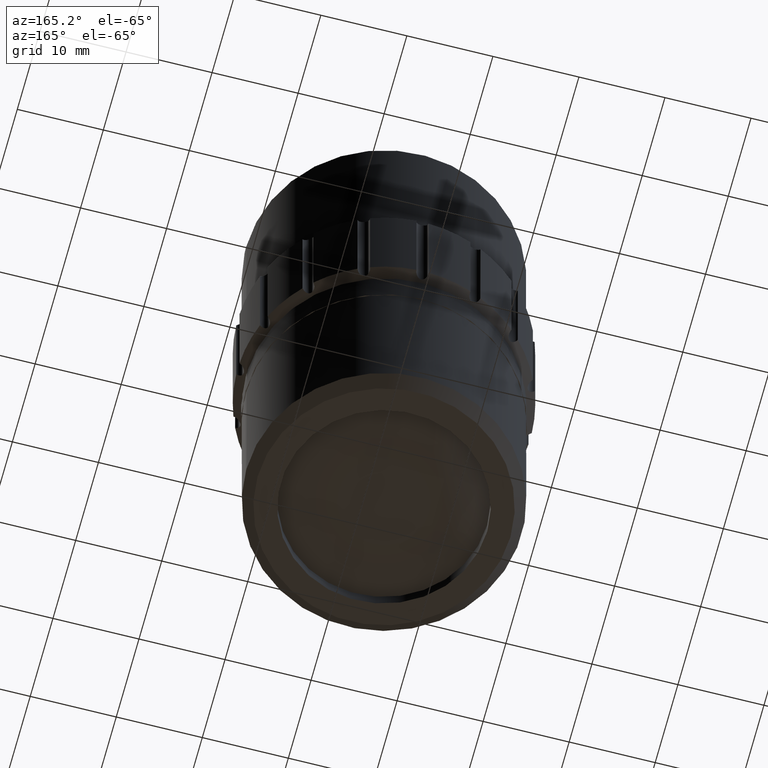
[diagram: clean part render]
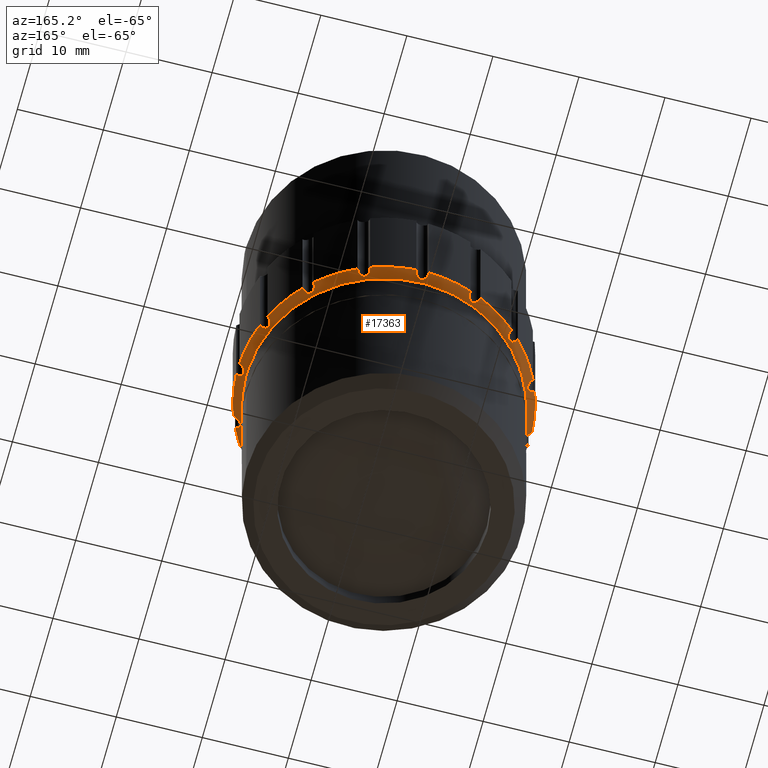
[diagram: same view with one face highlighted and labeled with its STEP entity id]
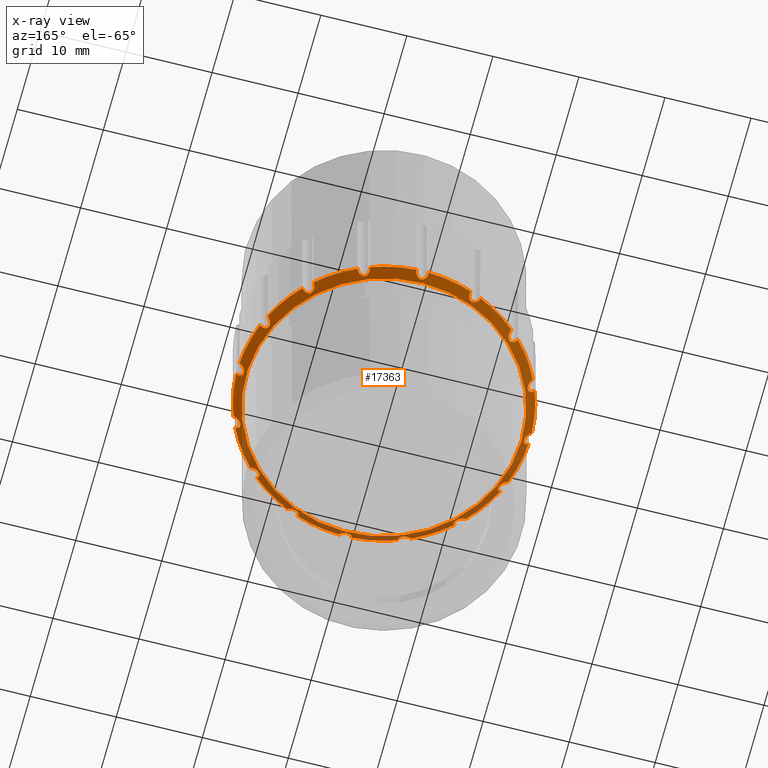
[diagram: x-ray of the same camera — body ghosted, the highlighted face saturated]
A machine part, auxiliary view. The second image highlights one B-rep face of the part: STEP entity #17363.
The next image is the same camera in x-ray: the body ghosted, the highlighted face saturated — about 29% of this face is hidden behind the body in this view.
In plain terms, the highlighted conical surface has half-angle 45 deg.
Its self-contained STEP definition (entity closure, byte-faithful):
#21 = CARTESIAN_POINT ( 'NONE',  ( -111.3419023495018934, 9.854602679465513049, -6.885319302732679780 ) ) ;
#33 = CARTESIAN_POINT ( 'NONE',  ( -115.5839193104910976, 37.29818992102168096, -6.657200975131925880 ) ) ;
#119 = ORIENTED_EDGE ( 'NONE', *, *, #6930, .F. ) ;
#129 = B_SPLINE_CURVE_WITH_KNOTS ( 'NONE', 3,
 ( #5927, #1613, #7332, #9836, #21, #12754, #1517, #15556, #5735, #10215, #3110, #11620, #11430, #5638, #11338, #17153 ),
 .UNSPECIFIED., .F., .F.,
 ( 4, 2, 2, 2, 2, 2, 2, 4 ),
 ( 2.788950520487731500E-07, 0.0003320497425292276710, 0.0006638205900064065483, 0.0009955914374835854799, 0.001327362284960764303, 0.001659133132437943126, 0.001990903979915122166, 0.002654445674869479813 ),
 .UNSPECIFIED. ) ;
#245 = CARTESIAN_POINT ( 'NONE',  ( -128.7028762110089986, 37.17821402331841796, -7.178683898143446207 ) ) ;
#429 = EDGE_CURVE ( 'NONE', #701, #12904, #17261, .T. ) ;
#447 = B_SPLINE_CURVE_WITH_KNOTS ( 'NONE', 3,
 ( #3949, #9568, #14074, #18463, #1433, #2648, #2835, #8446, #7056, #12569, #5644, #17065, #6780, #2456, #8173, #12481 ),
 .UNSPECIFIED., .F., .F.,
 ( 4, 2, 2, 2, 2, 2, 2, 4 ),
 ( 2.788950520971688539E-07, 0.0003320497425292775985, 0.0006638205900064580479, 0.0009955914374836386058, 0.001327362284960818947, 0.001659133132437999288, 0.001990903979915180280, 0.002654445674869533155 ),
 .UNSPECIFIED. ) ;
#512 = CARTESIAN_POINT ( 'NONE',  ( -129.7533215496408161, 37.29142236116442888, -6.658622593199095441 ) ) ;
#551 = B_SPLINE_CURVE_WITH_KNOTS ( 'NONE', 3,
 ( #12148, #13547, #17852, #9322, #904, #2219, #2314, #7934, #627, #10645, #3442, #16373, #12321, #815, #6532, #17937 ),
 .UNSPECIFIED., .F., .F.,
 ( 4, 2, 2, 2, 2, 2, 2, 4 ),
 ( 2.788950521044185030E-07, 0.0003320497425292804174, 0.0006638205900064564216, 0.0009955914374836323175, 0.001327362284960808539, 0.001659133132437984543, 0.001990903979915159897, 0.002654445674869517543 ),
 .UNSPECIFIED. ) ;
#566 = EDGE_CURVE ( 'NONE', #14642, #16787, #2303, .T. ) ;
#602 = CARTESIAN_POINT ( 'NONE',  ( -139.4916406340973936, 22.70704441361695203, -6.657200975131927656 ) ) ;
#627 = CARTESIAN_POINT ( 'NONE',  ( -106.3709829465454959, 21.90285117817321847, -7.207941769656402542 ) ) ;
#638 = B_SPLINE_CURVE_WITH_KNOTS ( 'NONE', 3,
 ( #15338, #1114, #6923, #18050, #1018, #1204, #13950, #16747, #18430, #6738, #4006, #5232, #4192, #2614, #11217, #3912 ),
 .UNSPECIFIED., .F., .F.,
 ( 4, 2, 2, 2, 2, 2, 2, 4 ),
 ( 2.788950520142565574E-07, 0.0003320497425291912418, 0.0006638205900063681676, 0.0009955914374835451476, 0.001327362284960722236, 0.001659133132437899108, 0.001990903979915075762, 0.002654445674869433409 ),
 .UNSPECIFIED. ) ;
#691 = CARTESIAN_POINT ( 'NONE',  ( -106.8507109331112019, 27.81624585155634577, -6.657200975131930321 ) ) ;
#701 = VERTEX_POINT ( 'NONE', #3123 ) ;
#710 = DIRECTION ( 'NONE',  ( 0.000000000000000000, 0.000000000000000000, 1.000000000000000000 ) ) ;
#736 = CARTESIAN_POINT ( 'NONE',  ( -134.0735207373168976, 34.40405978863111613, -6.657200975131932097 ) ) ;
#742 = CARTESIAN_POINT ( 'NONE',  ( -139.6482864039182346, 22.72326074510129246, -6.499999999999999112 ) ) ;
#800 = VERTEX_POINT ( 'NONE', #1019 ) ;
#815 = CARTESIAN_POINT ( 'NONE',  ( -105.9932780231821141, 22.66600531762102833, -6.817917757091785269 ) ) ;
#830 = CARTESIAN_POINT ( 'NONE',  ( -116.8171272836566459, 6.052052116680864735, -6.500000000000000000 ) ) ;
#904 = CARTESIAN_POINT ( 'NONE',  ( -106.0588715283892327, 21.42163832664651935, -6.885319302732679780 ) ) ;
#937 = CARTESIAN_POINT ( 'NONE',  ( -137.6692558464226863, 28.66997948622410775, -7.084665610043477280 ) ) ;
#964 = CARTESIAN_POINT ( 'NONE',  ( -122.6630341068842540, 22.01530283243863195, -6.499999999999999112 ) ) ;
#1018 = CARTESIAN_POINT ( 'NONE',  ( -138.2304656383955148, 16.20963939143204158, -6.885319302732670010 ) ) ;
#1019 = CARTESIAN_POINT ( 'NONE',  ( -107.2416309191019650, 14.86126035843428816, -6.499999999999999112 ) ) ;
#1114 = CARTESIAN_POINT ( 'NONE',  ( -138.5523845442889694, 16.19821836874679377, -6.579304794093276065 ) ) ;
#1129 = CARTESIAN_POINT ( 'NONE',  ( -137.6971138518726718, 28.76115525983340504, -7.021922413567946109 ) ) ;
#1165 = ORIENTED_EDGE ( 'NONE', *, *, #6561, .F. ) ;
#1204 = CARTESIAN_POINT ( 'NONE',  ( -138.0637718397595108, 16.15464109215254140, -7.021922413567930121 ) ) ;
#1220 = CARTESIAN_POINT ( 'NONE',  ( -105.6777818098502735, 21.30734491977609224, -6.499999999999999112 ) ) ;
#1223 = CARTESIAN_POINT ( 'NONE',  ( -128.7956178093069752, 6.921463584446635231, -7.208279676267786762 ) ) ;
#1228 = ORIENTED_EDGE ( 'NONE', *, *, #12891, .F. ) ;
#1262 = CARTESIAN_POINT ( 'NONE',  ( -116.8171272836566459, 6.052052116680864735, -6.500000000000000000 ) ) ;
#1291 = CARTESIAN_POINT ( 'NONE',  ( -122.1853390529945500, 5.545390139626682924, -7.023254621753828530 ) ) ;
#1304 = CARTESIAN_POINT ( 'NONE',  ( -110.7722821088528917, 33.33260945477358916, -7.084665610043468398 ) ) ;
#1398 = EDGE_LOOP ( 'NONE', ( #17178 ) ) ;
#1403 = CARTESIAN_POINT ( 'NONE',  ( -111.3358526791800216, 34.26271653975742026, -6.817917757091779940 ) ) ;
#1433 = CARTESIAN_POINT ( 'NONE',  ( -122.0693696010919354, 38.61946541093364260, -6.885319302732680669 ) ) ;
#1465 = ORIENTED_EDGE ( 'NONE', *, *, #15053, .F. ) ;
#1468 = CARTESIAN_POINT ( 'NONE',  ( -134.5537861049155310, 10.69799621010359125, -7.084665610043470174 ) ) ;
#1486 = CARTESIAN_POINT ( 'NONE',  ( -123.3709920195468470, 5.030050535404641643, -6.499999999999999112 ) ) ;
#1517 = CARTESIAN_POINT ( 'NONE',  ( -111.3457274845491867, 10.12455083440739934, -7.084665610043470174 ) ) ;
#1581 = EDGE_LOOP ( 'NONE', ( #2472, #4415, #1228, #17354, #15867, #8280, #1747, #13303, #3348, #12366, #10866, #3850, #119, #2148, #15548, #8454, #6693, #7861, #4579, #15640, #1465, #13280, #15743, #5657, #4626, #1165, #8231, #16553, #7645, #17883, #15439, #13350 ) ) ;
#1613 = CARTESIAN_POINT ( 'NONE',  ( -111.2081576685521469, 9.561559027344452844, -6.579304794093290276 ) ) ;
#1614 = AXIS2_PLACEMENT_3D ( 'NONE', #14748, #9306, #4739 ) ;
#1747 = ORIENTED_EDGE ( 'NONE', *, *, #17807, .F. ) ;
#1857 = B_SPLINE_CURVE_WITH_KNOTS ( 'NONE', 3,
 ( #9059, #11790, #6264, #4587, #3356, #3093, #17508, #8799, #14780, #9158, #4686, #10382, #14521, #3272, #8971, #11970 ),
 .UNSPECIFIED., .F., .F.,
 ( 4, 2, 2, 2, 2, 2, 2, 4 ),
 ( 2.788950520311143660E-07, 0.0003320497425292079927, 0.0006638205900063848643, 0.0009955914374835616275, 0.001327362284960738499, 0.001659133132437915588, 0.001990903979915092242, 0.002654445674869447287 ),
 .UNSPECIFIED. ) ;
#1917 = CARTESIAN_POINT ( 'NONE',  ( -128.5236958471703019, 37.41604056531384259, -7.021922413567939891 ) ) ;
#1936 = CARTESIAN_POINT ( 'NONE',  ( -122.6630341068842540, 22.01530283243863195, -6.499999999999999112 ) ) ;
#1942 = CARTESIAN_POINT ( 'NONE',  ( -135.1740230271196310, 33.52508807099749788, -6.499999999999999112 ) ) ;
#2015 = EDGE_CURVE ( 'NONE', #3805, #12998, #447, .T. ) ;
#2064 = B_SPLINE_CURVE_WITH_KNOTS ( 'NONE', 3,
 ( #8513, #18247, #14137, #13958, #12826, #12453, #1304, #6843, #15729, #4016, #9816, #17130, #18527, #1403, #6748, #11226 ),
 .UNSPECIFIED., .F., .F.,
 ( 4, 2, 2, 2, 2, 2, 2, 4 ),
 ( 2.788950520313550821E-07, 0.0003320497425292064206, 0.0006638205900063815033, 0.0009955914374835568570, 0.001327362284960731777, 0.001659133132437906914, 0.001990903979915082268, 0.002654445674869429939 ),
 .UNSPECIFIED. ) ;
#2114 = CARTESIAN_POINT ( 'NONE',  ( -122.6630341068842540, 22.01530283243863195, -6.499999999999999112 ) ) ;
#2144 = CARTESIAN_POINT ( 'NONE',  ( -116.8620910877663732, 6.202979658665650042, -6.657200975131936538 ) ) ;
#2148 = ORIENTED_EDGE ( 'NONE', *, *, #9671, .F. ) ;
#2159 = CARTESIAN_POINT ( 'NONE',  ( -138.4784721471974933, 27.80356021008190126, -6.658622593199097217 ) ) ;
#2188 = DIRECTION ( 'NONE',  ( 0.000000000000000000, 0.000000000000000000, 1.000000000000000000 ) ) ;
#2190 = CARTESIAN_POINT ( 'NONE',  ( -107.5112007096743270, 28.99571301505266874, -6.817917757091782605 ) ) ;
#2213 = CARTESIAN_POINT ( 'NONE',  ( -122.6630341068842540, 22.01530283243863195, -6.499999999999999112 ) ) ;
#2219 = CARTESIAN_POINT ( 'NONE',  ( -106.1918295792031444, 21.53624108468981291, -7.021922413567939003 ) ) ;
#2287 = EDGE_CURVE ( 'NONE', #2635, #11468, #2808, .T. ) ;
#2303 = B_SPLINE_CURVE_WITH_KNOTS ( 'NONE', 3,
 ( #7155, #12859, #33, #17165, #2935, #8643, #6204, #13052, #10319, #5842, #10491, #8915, #17536, #4526, #10226, #14811 ),
 .UNSPECIFIED., .F., .F.,
 ( 4, 2, 2, 2, 2, 2, 2, 4 ),
 ( 2.788950520255451243E-07, 0.0003320497425292072880, 0.0006638205900063890927, 0.0009955914374835707348, 0.001327362284960752594, 0.001659133132437934236, 0.001990903979915115661, 0.002654445674869453358 ),
 .UNSPECIFIED. ) ;
#2314 = CARTESIAN_POINT ( 'NONE',  ( -106.2524584782483572, 21.60981571864385131, -7.084665610043474615 ) ) ;
#2345 = CARTESIAN_POINT ( 'NONE',  ( -137.7760944968957233, 28.91791524560496640, -6.885319302732687774 ) ) ;
#2373 = B_SPLINE_CURVE_WITH_KNOTS ( 'NONE', 3,
 ( #8940, #13432, #602, #6508, #3236, #12020, #9022, #16434, #17727, #3598, #4914, #12211, #12120, #10619, #9210, #14927 ),
 .UNSPECIFIED., .F., .F.,
 ( 4, 2, 2, 2, 2, 2, 2, 4 ),
 ( 2.788950520995468460E-07, 0.0003320497425292776527, 0.0006638205900064557711, 0.0009955914374836340522, 0.001327362284960812008, 0.001659133132437989964, 0.001990903979915168570, 0.002654445674869526216 ),
 .UNSPECIFIED. ) ;
#2435 = CARTESIAN_POINT ( 'NONE',  ( -138.6262848226419635, 27.86120965566641772, -6.499999999999999112 ) ) ;
#2450 = CARTESIAN_POINT ( 'NONE',  ( -129.8170765808884255, 37.43670602022100269, -6.499999999999999112 ) ) ;
#2456 = CARTESIAN_POINT ( 'NONE',  ( -123.3137365920665047, 38.68505891614081094, -6.817917757091787045 ) ) ;
#2460 = DIRECTION ( 'NONE',  ( 0.000000000000000000, 0.000000000000000000, 1.000000000000000000 ) ) ;
#2462 = CARTESIAN_POINT ( 'NONE',  ( -107.3869145781584393, 29.10559027519511233, -6.658622593199100770 ) ) ;
#2472 = ORIENTED_EDGE ( 'NONE', *, *, #429, .F. ) ;
#2536 = CARTESIAN_POINT ( 'NONE',  ( -128.4411028738700509, 6.365443314272631881, -6.817917757091787045 ) ) ;
#2598 = DIRECTION ( 'NONE',  ( 0.000000000000000000, 0.000000000000000000, 1.000000000000000000 ) ) ;
#2602 = EDGE_CURVE ( 'NONE', #17559, #17721, #15400, .T. ) ;
#2614 = CARTESIAN_POINT ( 'NONE',  ( -137.8148675040941669, 15.03489264982450280, -6.817917757091783493 ) ) ;
#2635 = VERTEX_POINT ( 'NONE', #4912 ) ;
#2648 = CARTESIAN_POINT ( 'NONE',  ( -122.1839723591352680, 38.48650736011973805, -7.021922413567941668 ) ) ;
#2808 = CIRCLE ( 'NONE', #12678, 17.00000000000000000 ) ;
#2815 = CARTESIAN_POINT ( 'NONE',  ( -129.7421489032773536, 6.732415743855563406, -6.657200975131939202 ) ) ;
#2835 = CARTESIAN_POINT ( 'NONE',  ( -122.2575469930893064, 38.42587846107456784, -7.084665610043467510 ) ) ;
#2935 = CARTESIAN_POINT ( 'NONE',  ( -115.7604216937178734, 37.12836322245009057, -6.885319302732678892 ) ) ;
#3016 = EDGE_CURVE ( 'NONE', #7044, #15342, #638, .T. ) ;
#3037 = VERTEX_POINT ( 'NONE', #16938 ) ;
#3053 = CARTESIAN_POINT ( 'NONE',  ( -128.9995986711018077, 37.02465044101067804, -7.208279676267784986 ) ) ;
#3059 = CARTESIAN_POINT ( 'NONE',  ( -134.3603899020747576, 10.63262143366488921, -7.178683898143444431 ) ) ;
#3074 = EDGE_CURVE ( 'NONE', #15941, #14805, #11172, .T. ) ;
#3093 = CARTESIAN_POINT ( 'NONE',  ( -107.6289543618957794, 15.26945040504397078, -7.021922413567936339 ) ) ;
#3110 = CARTESIAN_POINT ( 'NONE',  ( -110.9661908024059187, 10.63223242762738074, -7.178776448947755462 ) ) ;
#3123 = CARTESIAN_POINT ( 'NONE',  ( -106.6997833911264308, 27.86120965566607310, -6.499999999999999112 ) ) ;
#3227 = CARTESIAN_POINT ( 'NONE',  ( -138.0844372946664862, 29.16934530644307699, -6.499999999999999112 ) ) ;
#3236 = CARTESIAN_POINT ( 'NONE',  ( -139.2671966853792753, 22.60896733823087246, -6.885319302732691327 ) ) ;
#3259 = CARTESIAN_POINT ( 'NONE',  ( -121.9550761942215331, 39.00055512947261604, -6.499999999999999112 ) ) ;
#3272 = CARTESIAN_POINT ( 'NONE',  ( -107.0131745887182575, 16.23723406545288839, -6.817917757091779940 ) ) ;
#3276 = DIRECTION ( 'NONE',  ( 1.000000000000000000, 0.000000000000000000, 0.000000000000000000 ) ) ;
#3321 = CARTESIAN_POINT ( 'NONE',  ( -129.6434442894983476, 37.16713622964855546, -6.817917757091771058 ) ) ;
#3348 = ORIENTED_EDGE ( 'NONE', *, *, #12704, .F. ) ;
#3351 = CARTESIAN_POINT ( 'NONE',  ( -123.3709920195468470, 5.030050535404641643, -6.499999999999999112 ) ) ;
#3356 = CARTESIAN_POINT ( 'NONE',  ( -107.5499737168727137, 15.11269041927239698, -6.885319302732676228 ) ) ;
#3408 = CARTESIAN_POINT ( 'NONE',  ( -138.6630341068842540, 22.01530283243863195, -7.500000000000000000 ) ) ;
#3442 = CARTESIAN_POINT ( 'NONE',  ( -106.3430706138452422, 22.23717377754582358, -7.178776448947761679 ) ) ;
#3444 = CIRCLE ( 'NONE', #4017, 17.00000000000000000 ) ;
#3598 = CARTESIAN_POINT ( 'NONE',  ( -138.9547614356289671, 21.90490918553084398, -7.208279676267807190 ) ) ;
#3616 = CARTESIAN_POINT ( 'NONE',  ( -139.6482864039182346, 21.30734491977621303, -6.499999999999999112 ) ) ;
#3650 = EDGE_CURVE ( 'NONE', #16768, #4146, #13811, .T. ) ;
#3805 = VERTEX_POINT ( 'NONE', #3259 ) ;
#3840 = EDGE_CURVE ( 'NONE', #9722, #16768, #9095, .T. ) ;
#3842 = CARTESIAN_POINT ( 'NONE',  ( -122.6630341068842540, 22.01530283243863195, -7.500000000000000000 ) ) ;
#3850 = ORIENTED_EDGE ( 'NONE', *, *, #3840, .F. ) ;
#3912 = CARTESIAN_POINT ( 'NONE',  ( -138.0844372946665999, 14.86126035843439475, -6.499999999999999112 ) ) ;
#3929 = CARTESIAN_POINT ( 'NONE',  ( -129.4088865342789632, 6.981223087450178610, -7.021922413567923904 ) ) ;
#3943 = EDGE_CURVE ( 'NONE', #10492, #16439, #18036, .T. ) ;
#3949 = CARTESIAN_POINT ( 'NONE',  ( -121.9550761942215331, 39.00055512947261604, -6.499999999999999112 ) ) ;
#3972 = DIRECTION ( 'NONE',  ( 0.000000000000000000, 0.000000000000000000, 1.000000000000000000 ) ) ;
#4006 = CARTESIAN_POINT ( 'NONE',  ( -137.6558080146187422, 15.56494116180611975, -7.178776448947745692 ) ) ;
#4016 = CARTESIAN_POINT ( 'NONE',  ( -111.2211033318150157, 33.61335380016456043, -7.208279676267788538 ) ) ;
#4017 = AXIS2_PLACEMENT_3D ( 'NONE', #6698, #13904, #12220 ) ;
#4123 = VERTEX_POINT ( 'NONE', #17978 ) ;
#4146 = VERTEX_POINT ( 'NONE', #9090 ) ;
#4192 = CARTESIAN_POINT ( 'NONE',  ( -137.6964433631747795, 15.27120742932948261, -7.023254621753832083 ) ) ;
#4214 = CARTESIAN_POINT ( 'NONE',  ( -129.0016239469632353, 7.006443607804359708, -7.207941769656403430 ) ) ;
#4333 = VERTEX_POINT ( 'NONE', #742 ) ;
#4371 = CARTESIAN_POINT ( 'NONE',  ( -133.9902155345884296, 9.767889125119769034, -6.817917757091782605 ) ) ;
#4415 = ORIENTED_EDGE ( 'NONE', *, *, #8732, .F. ) ;
#4451 = CARTESIAN_POINT ( 'NONE',  ( -128.5089409301117485, 37.97855354819644447, -6.500000000000000000 ) ) ;
#4460 = CARTESIAN_POINT ( 'NONE',  ( -128.4580634283840368, 37.66698362269206513, -6.809977491739670263 ) ) ;
#4526 = CARTESIAN_POINT ( 'NONE',  ( -116.8849653398983719, 37.66516235060459650, -6.817917757091785269 ) ) ;
#4579 = ORIENTED_EDGE ( 'NONE', *, *, #12389, .F. ) ;
#4587 = CARTESIAN_POINT ( 'NONE',  ( -107.4979199527213609, 15.04559773909070231, -6.809977491739668487 ) ) ;
#4591 = DIRECTION ( 'NONE',  ( 0.000000000000000000, 0.000000000000000000, 1.000000000000000000 ) ) ;
#4626 = ORIENTED_EDGE ( 'NONE', *, *, #2602, .F. ) ;
#4668 = DIRECTION ( 'NONE',  ( 0.000000000000000000, 0.000000000000000000, 1.000000000000000000 ) ) ;
#4686 = CARTESIAN_POINT ( 'NONE',  ( -107.5004475295183965, 15.97490521189294910, -7.178776448947757238 ) ) ;
#4688 = CARTESIAN_POINT ( 'NONE',  ( -134.5516102305111588, 33.33313221477220623, -7.085877810619989781 ) ) ;
#4732 = CARTESIAN_POINT ( 'NONE',  ( -129.3155004632516523, 37.02117486815467373, -7.085877810619995998 ) ) ;
#4739 = DIRECTION ( 'NONE',  ( 1.000000000000000000, 0.000000000000000000, 0.000000000000000000 ) ) ;
#4848 = EDGE_CURVE ( 'NONE', #15342, #10492, #3444, .T. ) ;
#4912 = CARTESIAN_POINT ( 'NONE',  ( -106.6997833911265161, 16.16939600921095987, -6.499999999999999112 ) ) ;
#4913 = CARTESIAN_POINT ( 'NONE',  ( -107.6571620711681732, 28.66776918880592717, -7.085877810620007544 ) ) ;
#4914 = CARTESIAN_POINT ( 'NONE',  ( -138.9829975999233227, 21.79343188733154690, -7.178776448947767896 ) ) ;
#4959 = CARTESIAN_POINT ( 'NONE',  ( -116.7575999433631040, 6.698734691926534701, -7.084665610043473727 ) ) ;
#4996 = B_SPLINE_CURVE_WITH_KNOTS ( 'NONE', 3,
 ( #16491, #10674, #6850, #8058, #2345, #1129, #937, #9633, #18253, #13861, #10763, #17881, #5062, #5341, #2159, #2435 ),
 .UNSPECIFIED., .F., .F.,
 ( 4, 2, 2, 2, 2, 2, 2, 4 ),
 ( 2.788950520415918459E-07, 0.0003320497425292201358, 0.0006638205900063987421, 0.0009955914374835772400, 0.001327362284960755846, 0.001659133132437934236, 0.001990903979915112625, 0.002654445674869466802 ),
 .UNSPECIFIED. ) ;
#5046 = CARTESIAN_POINT ( 'NONE',  ( -115.6826239242700751, 6.863469435228780391, -6.817917757091790598 ) ) ;
#5062 = CARTESIAN_POINT ( 'NONE',  ( -138.0620553288674159, 27.87673286940675865, -7.023254621753829419 ) ) ;
#5168 = CIRCLE ( 'NONE', #18025, 17.00000000000000000 ) ;
#5178 = DIRECTION ( 'NONE',  ( 1.000000000000000000, 0.000000000000000000, 0.000000000000000000 ) ) ;
#5232 = CARTESIAN_POINT ( 'NONE',  ( -137.6689061426002070, 15.36283647607123903, -7.085877810619998662 ) ) ;
#5240 = CIRCLE ( 'NONE', #7649, 17.00000000000000000 ) ;
#5280 = CARTESIAN_POINT ( 'NONE',  ( -107.6702601991497232, 28.46566450307105356, -7.178776448947765232 ) ) ;
#5341 = CARTESIAN_POINT ( 'NONE',  ( -138.3128936250502932, 27.79337159942449276, -6.817917757091777275 ) ) ;
#5451 = CARTESIAN_POINT ( 'NONE',  ( -129.8170765808886529, 6.593899644656365133, -6.499999999999999112 ) ) ;
#5531 = CARTESIAN_POINT ( 'NONE',  ( -129.1140181233620012, 7.022692197715462825, -7.178683898143437325 ) ) ;
#5572 = CIRCLE ( 'NONE', #17766, 17.00000000000000000 ) ;
#5606 = CARTESIAN_POINT ( 'NONE',  ( -122.7754857611496959, 5.723251672099896048, -7.207941769656403430 ) ) ;
#5620 = CARTESIAN_POINT ( 'NONE',  ( -105.6777818098502735, 22.72326074510117166, -6.499999999999999112 ) ) ;
#5638 = CARTESIAN_POINT ( 'NONE',  ( -110.4156203995653556, 10.68812140473452033, -6.817917757091784381 ) ) ;
#5644 = CARTESIAN_POINT ( 'NONE',  ( -122.8849050519912680, 38.33526632547767576, -7.178776448947763456 ) ) ;
#5657 = ORIENTED_EDGE ( 'NONE', *, *, #8435, .F. ) ;
#5735 = CARTESIAN_POINT ( 'NONE',  ( -111.2223295792573055, 10.41556765023821463, -7.207941769656401654 ) ) ;
#5775 = CARTESIAN_POINT ( 'NONE',  ( -134.8237342598573889, 10.69417107505633169, -6.885319302732684221 ) ) ;
#5842 = CARTESIAN_POINT ( 'NONE',  ( -116.5304504044614333, 37.10914208043058693, -7.208279676267796532 ) ) ;
#5874 = CARTESIAN_POINT ( 'NONE',  ( -133.9808634892178247, 10.12672670881172010, -7.085877810620002215 ) ) ;
#5927 = CARTESIAN_POINT ( 'NONE',  ( -111.1532488683255195, 9.504313912203135928, -6.499999999999999112 ) ) ;
#5962 = CARTESIAN_POINT ( 'NONE',  ( -128.7938403834173471, 37.11022882713182014, -7.207941769656397213 ) ) ;
#6020 = EDGE_CURVE ( 'NONE', #3037, #15941, #16296, .T. ) ;
#6204 = CARTESIAN_POINT ( 'NONE',  ( -116.0083574530987107, 37.02152457197703228, -7.084665610043462181 ) ) ;
#6226 = CARTESIAN_POINT ( 'NONE',  ( -129.8170765808884255, 37.43670602022100269, -6.499999999999999112 ) ) ;
#6264 = CARTESIAN_POINT ( 'NONE',  ( -107.3801470183011304, 14.93618803604561762, -6.657200975131934761 ) ) ;
#6265 = CARTESIAN_POINT ( 'NONE',  ( -116.8023723665981493, 6.614565099563458617, -7.021922413567945220 ) ) ;
#6278 = CARTESIAN_POINT ( 'NONE',  ( -110.1520451866486496, 33.52508807099724208, -6.499999999999999112 ) ) ;
#6426 = DIRECTION ( 'NONE',  ( 0.000000000000000000, 0.000000000000000000, 1.000000000000000000 ) ) ;
#6454 = CARTESIAN_POINT ( 'NONE',  ( -116.8680047853843860, 6.363622042185236083, -6.809977491739671152 ) ) ;
#6508 = CARTESIAN_POINT ( 'NONE',  ( -139.3409633498073674, 22.65103277909911483, -6.809977491739664046 ) ) ;
#6532 = CARTESIAN_POINT ( 'NONE',  ( -105.8364044030493289, 22.71995642595118525, -6.658622593199107875 ) ) ;
#6537 = VERTEX_POINT ( 'NONE', #3616 ) ;
#6561 = EDGE_CURVE ( 'NONE', #12998, #17559, #5240, .T. ) ;
#6594 = CARTESIAN_POINT ( 'NONE',  ( -122.6630341068842540, 22.01530283243863195, -6.499999999999999112 ) ) ;
#6621 = DIRECTION ( 'NONE',  ( 0.000000000000000000, 0.000000000000000000, 1.000000000000000000 ) ) ;
#6637 = CARTESIAN_POINT ( 'NONE',  ( -116.0105677505168131, 7.009430796722650570, -7.085877810620019090 ) ) ;
#6685 = DIRECTION ( 'NONE',  ( 1.000000000000000000, 0.000000000000000000, 0.000000000000000000 ) ) ;
#6687 = CARTESIAN_POINT ( 'NONE',  ( -107.2622963740090114, 27.87596457272460881, -7.021922413567946109 ) ) ;
#6693 = ORIENTED_EDGE ( 'NONE', *, *, #3016, .F. ) ;
#6698 = CARTESIAN_POINT ( 'NONE',  ( -122.6630341068842540, 22.01530283243863195, -6.499999999999999112 ) ) ;
#6738 = CARTESIAN_POINT ( 'NONE',  ( -137.6723817154563108, 15.67873826822107119, -7.208279676267777880 ) ) ;
#6748 = CARTESIAN_POINT ( 'NONE',  ( -111.2630754731477367, 34.41179213489533595, -6.658622593199105211 ) ) ;
#6757 = DIRECTION ( 'NONE',  ( -1.000000000000000000, 0.000000000000000000, 0.000000000000000000 ) ) ;
#6780 = CARTESIAN_POINT ( 'NONE',  ( -123.1407291607738301, 38.48521552525058098, -7.023254621753839189 ) ) ;
#6823 = EDGE_CURVE ( 'NONE', #10509, #10509, #16028, .T. ) ;
#6843 = CARTESIAN_POINT ( 'NONE',  ( -110.9656783116936936, 33.39798423121229121, -7.178683898143439990 ) ) ;
#6850 = CARTESIAN_POINT ( 'NONE',  ( -137.9459211954673208, 29.09441762883175997, -6.657200975131940091 ) ) ;
#6901 = CARTESIAN_POINT ( 'NONE',  ( -133.9712396455773273, 10.03153446985625230, -7.023254621753835636 ) ) ;
#6923 = CARTESIAN_POINT ( 'NONE',  ( -138.4753572806572492, 16.21435981332079734, -6.657200975131931209 ) ) ;
#6930 = EDGE_CURVE ( 'NONE', #10962, #9722, #14067, .T. ) ;
#6940 = CARTESIAN_POINT ( 'NONE',  ( -128.5697839087539194, 6.700544886163497083, -7.085877810620011985 ) ) ;
#6993 = CARTESIAN_POINT ( 'NONE',  ( -134.0629927406208139, 9.618813529981867561, -6.658622593199107875 ) ) ;
#7034 = EDGE_CURVE ( 'NONE', #11012, #4333, #7051, .T. ) ;
#7044 = VERTEX_POINT ( 'NONE', #8803 ) ;
#7051 = CIRCLE ( 'NONE', #7946, 17.00000000000000000 ) ;
#7056 = CARTESIAN_POINT ( 'NONE',  ( -122.5505824526186984, 38.30735399277736519, -7.207941769656407871 ) ) ;
#7155 = CARTESIAN_POINT ( 'NONE',  ( -115.5089916328797557, 37.43670602022085347, -6.499999999999999112 ) ) ;
#7185 = CARTESIAN_POINT ( 'NONE',  ( -135.1740230271197731, 10.50551759387993300, -6.499999999999998224 ) ) ;
#7202 = CARTESIAN_POINT ( 'NONE',  ( -123.1420958546331121, 5.544098304757522300, -7.021922413567937227 ) ) ;
#7234 = CARTESIAN_POINT ( 'NONE',  ( -110.1520451866487917, 10.50551759387985129, -6.499999999999999112 ) ) ;
#7291 = VERTEX_POINT ( 'NONE', #14035 ) ;
#7295 = CARTESIAN_POINT ( 'NONE',  ( -123.2987640535446303, 5.337373589515531869, -6.809977491739665822 ) ) ;
#7332 = CARTESIAN_POINT ( 'NONE',  ( -111.2525474764514968, 9.626545876246218825, -6.657200975131933873 ) ) ;
#7370 = CARTESIAN_POINT ( 'NONE',  ( -128.5089409301117485, 37.97855354819644447, -6.500000000000000000 ) ) ;
#7475 = CARTESIAN_POINT ( 'NONE',  ( -106.6997833911264308, 27.86120965566607310, -6.499999999999999112 ) ) ;
#7645 = ORIENTED_EDGE ( 'NONE', *, *, #566, .F. ) ;
#7649 = AXIS2_PLACEMENT_3D ( 'NONE', #2213, #13728, #7928 ) ;
#7715 = CARTESIAN_POINT ( 'NONE',  ( -134.1728193454430595, 9.504313912203208758, -6.499999999999999112 ) ) ;
#7768 = CARTESIAN_POINT ( 'NONE',  ( -134.1037386345111315, 33.61503801463912566, -7.207941769656398989 ) ) ;
#7858 = CARTESIAN_POINT ( 'NONE',  ( -133.9803407292193071, 33.90605483046994806, -7.084665610043463957 ) ) ;
#7861 = ORIENTED_EDGE ( 'NONE', *, *, #9887, .F. ) ;
#7928 = DIRECTION ( 'NONE',  ( 1.000000000000000000, 0.000000000000000000, 0.000000000000000000 ) ) ;
#7934 = CARTESIAN_POINT ( 'NONE',  ( -106.3429832969944044, 21.79279443286667117, -7.178683898143447095 ) ) ;
#7946 = AXIS2_PLACEMENT_3D ( 'NONE', #12461, #4591, #3276 ) ;
#8058 = CARTESIAN_POINT ( 'NONE',  ( -137.8281482610470334, 28.98500792578666108, -6.809977491739674704 ) ) ;
#8121 = CARTESIAN_POINT ( 'NONE',  ( -122.6630341068842540, 22.01530283243863195, -6.499999999999999112 ) ) ;
#8173 = CARTESIAN_POINT ( 'NONE',  ( -123.3676877003966581, 38.84193253627352505, -6.658622593199108763 ) ) ;
#8178 = CARTESIAN_POINT ( 'NONE',  ( -107.3464659663720653, 27.92073699595962921, -7.084665610043471951 ) ) ;
#8197 = DIRECTION ( 'NONE',  ( 1.000000000000000000, 0.000000000000000000, 0.000000000000000000 ) ) ;
#8198 = AXIS2_PLACEMENT_3D ( 'NONE', #9809, #12533, #12444 ) ;
#8231 = ORIENTED_EDGE ( 'NONE', *, *, #2015, .F. ) ;
#8251 = CARTESIAN_POINT ( 'NONE',  ( -128.4512914845274736, 6.199864792125380220, -6.658622593199110540 ) ) ;
#8280 = ORIENTED_EDGE ( 'NONE', *, *, #9907, .F. ) ;
#8338 = CARTESIAN_POINT ( 'NONE',  ( -129.7852016788111484, 6.666535518488909240, -6.579304794093288500 ) ) ;
#8427 = DIRECTION ( 'NONE',  ( -0.000000000000000000, -0.000000000000000000, -1.000000000000000000 ) ) ;
#8435 = EDGE_CURVE ( 'NONE', #17721, #3037, #5572, .T. ) ;
#8446 = CARTESIAN_POINT ( 'NONE',  ( -122.4405257073121049, 38.33535364232844955, -7.178683898143443542 ) ) ;
#8448 = CIRCLE ( 'NONE', #11427, 17.00000000000000000 ) ;
#8454 = ORIENTED_EDGE ( 'NONE', *, *, #4848, .F. ) ;
#8489 = CARTESIAN_POINT ( 'NONE',  ( -116.8171272836564185, 37.97855354819631657, -6.499999999999999112 ) ) ;
#8500 = CARTESIAN_POINT ( 'NONE',  ( -123.3693399954277226, 5.109355329497934584, -6.579304794093292053 ) ) ;
#8513 = CARTESIAN_POINT ( 'NONE',  ( -110.1520451866486496, 33.52508807099724208, -6.499999999999999112 ) ) ;
#8536 = AXIS2_PLACEMENT_3D ( 'NONE', #8121, #2598, #12707 ) ;
#8643 = CARTESIAN_POINT ( 'NONE',  ( -115.9171816794894454, 37.04938257742705332, -7.021922413567937227 ) ) ;
#8732 = EDGE_CURVE ( 'NONE', #14301, #701, #11737, .T. ) ;
#8753 = DIRECTION ( 'NONE',  ( 1.000000000000000000, 0.000000000000000000, 0.000000000000000000 ) ) ;
#8799 = CARTESIAN_POINT ( 'NONE',  ( -107.6704234721610334, 15.56431881596092381, -7.178683898143438213 ) ) ;
#8803 = CARTESIAN_POINT ( 'NONE',  ( -138.6262848226420488, 16.16939600921107356, -6.499999999999998224 ) ) ;
#8915 = CARTESIAN_POINT ( 'NONE',  ( -116.7562843050145887, 37.33006077871373662, -7.085877810620011097 ) ) ;
#8940 = CARTESIAN_POINT ( 'NONE',  ( -139.6482864039182346, 22.72326074510129246, -6.499999999999999112 ) ) ;
#8971 = CARTESIAN_POINT ( 'NONE',  ( -106.8475960665709863, 16.22704545479547633, -6.658622593199109652 ) ) ;
#9022 = CARTESIAN_POINT ( 'NONE',  ( -139.0736097355201935, 22.42078994623354404, -7.084665610043474615 ) ) ;
#9059 = CARTESIAN_POINT ( 'NONE',  ( -107.2416309191019650, 14.86126035843428816, -6.499999999999999112 ) ) ;
#9061 = CARTESIAN_POINT ( 'NONE',  ( -133.9841658642665720, 34.17600298541183435, -6.885319302732683333 ) ) ;
#9090 = CARTESIAN_POINT ( 'NONE',  ( -121.9550761942217747, 5.030050535404635426, -6.499999999999999112 ) ) ;
#9095 = CIRCLE ( 'NONE', #10289, 17.00000000000000000 ) ;
#9158 = CARTESIAN_POINT ( 'NONE',  ( -107.5691948588922315, 15.88271913001594982, -7.208279676267789426 ) ) ;
#9159 = CARTESIAN_POINT ( 'NONE',  ( -116.6231920027594242, 6.852391641558894797, -7.178683898143451536 ) ) ;
#9210 = CARTESIAN_POINT ( 'NONE',  ( -139.4896638107191507, 21.31064923892620300, -6.658622593199116757 ) ) ;
#9298 = CARTESIAN_POINT ( 'NONE',  ( -107.5681081121909983, 28.14610910897165041, -7.207941769656409647 ) ) ;
#9306 = DIRECTION ( 'NONE',  ( 0.000000000000000000, 0.000000000000000000, 1.000000000000000000 ) ) ;
#9322 = CARTESIAN_POINT ( 'NONE',  ( -105.9851048639611548, 21.37957288577827342, -6.809977491739675592 ) ) ;
#9568 = CARTESIAN_POINT ( 'NONE',  ( -121.9567282183406860, 38.92125033537932666, -6.579304794093294717 ) ) ;
#9573 = CARTESIAN_POINT ( 'NONE',  ( -107.6296248505937143, 28.75939823554769603, -7.023254621753835636 ) ) ;
#9625 = AXIS2_PLACEMENT_3D ( 'NONE', #13072, #17284, #14191 ) ;
#9633 = CARTESIAN_POINT ( 'NONE',  ( -137.6556447416073468, 28.46628684891642180, -7.178683898143447983 ) ) ;
#9671 = EDGE_CURVE ( 'NONE', #16439, #10962, #8448, .T. ) ;
#9722 = VERTEX_POINT ( 'NONE', #13520 ) ;
#9736 = CARTESIAN_POINT ( 'NONE',  ( -129.8170765808886529, 6.593899644656365133, -6.499999999999999112 ) ) ;
#9786 = CARTESIAN_POINT ( 'NONE',  ( -135.1167779119784029, 10.56042639410657635, -6.579304794093305375 ) ) ;
#9809 = CARTESIAN_POINT ( 'NONE',  ( -122.6630341068842540, 22.01530283243863195, -6.499999999999999112 ) ) ;
#9816 = CARTESIAN_POINT ( 'NONE',  ( -111.2799637020728483, 33.71214613691685713, -7.178776448947759903 ) ) ;
#9836 = CARTESIAN_POINT ( 'NONE',  ( -111.3194861993508198, 9.772697012331363453, -6.809977491739668487 ) ) ;
#9863 = FACE_BOUND ( 'NONE', #1398, .T. ) ;
#9887 = EDGE_CURVE ( 'NONE', #6537, #7044, #16546, .T. ) ;
#9895 = CARTESIAN_POINT ( 'NONE',  ( -122.4411631617771405, 5.695339339399591694, -7.178776448947756350 ) ) ;
#9907 = EDGE_CURVE ( 'NONE', #17869, #800, #5168, .T. ) ;
#9918 = CARTESIAN_POINT ( 'NONE',  ( -129.3177107606696836, 7.009081092900180110, -7.084665610043459516 ) ) ;
#10154 = CARTESIAN_POINT ( 'NONE',  ( -122.6630341068842540, 22.01530283243863195, -6.499999999999999112 ) ) ;
#10163 = CARTESIAN_POINT ( 'NONE',  ( -128.4686975478907698, 37.58273436394991052, -6.885319302732679780 ) ) ;
#10215 = CARTESIAN_POINT ( 'NONE',  ( -111.0649831391582012, 10.57337205736953756, -7.208279676267789426 ) ) ;
#10226 = CARTESIAN_POINT ( 'NONE',  ( -116.8747767292409634, 37.83074087275186059, -6.658622593199103434 ) ) ;
#10259 = AXIS2_PLACEMENT_3D ( 'NONE', #6594, #2460, #5178 ) ;
#10289 = AXIS2_PLACEMENT_3D ( 'NONE', #16464, #6621, #13823 ) ;
#10319 = CARTESIAN_POINT ( 'NONE',  ( -116.3244442668051590, 37.02416205707285712, -7.207941769656401654 ) ) ;
#10382 = CARTESIAN_POINT ( 'NONE',  ( -107.3482761606091174, 16.10855303056908738, -7.085877810620005768 ) ) ;
#10384 = CARTESIAN_POINT ( 'NONE',  ( -135.0595234093410397, 33.41526146617518123, -6.658622593199095441 ) ) ;
#10466 = CARTESIAN_POINT ( 'NONE',  ( -134.9104478142030814, 33.34248426014283240, -6.817917757091786157 ) ) ;
#10491 = CARTESIAN_POINT ( 'NONE',  ( -116.6226364863384362, 37.17788940980444323, -7.178776448947764344 ) ) ;
#10492 = VERTEX_POINT ( 'NONE', #15862 ) ;
#10509 = VERTEX_POINT ( 'NONE', #3408 ) ;
#10560 = CARTESIAN_POINT ( 'NONE',  ( -134.2610850746102074, 33.45723360750778141, -7.208279676267788538 ) ) ;
#10619 = CARTESIAN_POINT ( 'NONE',  ( -139.3327901905864508, 21.36460034725634216, -6.817917757091792375 ) ) ;
#10631 = CONICAL_SURFACE ( 'NONE', #16336, 16.00000000000000000, 0.7853981633974487231 ) ;
#10645 = CARTESIAN_POINT ( 'NONE',  ( -106.3713067781395836, 22.12569647934654071, -7.208279676267795644 ) ) ;
#10674 = CARTESIAN_POINT ( 'NONE',  ( -138.0118014208339901, 29.13747040436555125, -6.579304794093309816 ) ) ;
#10706 = CARTESIAN_POINT ( 'NONE',  ( -107.0113533166307747, 27.81033215393832947, -6.809977491739666711 ) ) ;
#10747 = CARTESIAN_POINT ( 'NONE',  ( -115.5089916328799546, 6.593899644656321613, -6.499999999999999112 ) ) ;
#10763 = CARTESIAN_POINT ( 'NONE',  ( -137.8256206842501399, 28.05570045298440363, -7.178776448947755462 ) ) ;
#10866 = ORIENTED_EDGE ( 'NONE', *, *, #3650, .F. ) ;
#10926 = CIRCLE ( 'NONE', #12434, 17.00000000000000000 ) ;
#10933 = CARTESIAN_POINT ( 'NONE',  ( -116.8459496431923554, 6.125952395033952058, -6.579304794093294717 ) ) ;
#10962 = VERTEX_POINT ( 'NONE', #5451 ) ;
#11012 = VERTEX_POINT ( 'NONE', #12564 ) ;
#11172 = CIRCLE ( 'NONE', #8198, 17.00000000000000000 ) ;
#11217 = CARTESIAN_POINT ( 'NONE',  ( -137.9391536356100403, 14.92501538968204855, -6.658622593199094553 ) ) ;
#11226 = CARTESIAN_POINT ( 'NONE',  ( -111.1532488683253348, 34.52629175267396278, -6.499999999999999112 ) ) ;
#11338 = CARTESIAN_POINT ( 'NONE',  ( -110.2665448044274257, 10.61534419870216794, -6.658622593199103434 ) ) ;
#11396 = CARTESIAN_POINT ( 'NONE',  ( -121.9583805133717505, 5.188673128603737972, -6.658622593199102546 ) ) ;
#11427 = AXIS2_PLACEMENT_3D ( 'NONE', #12977, #15883, #8753 ) ;
#11430 = CARTESIAN_POINT ( 'NONE',  ( -110.6792657443018300, 10.70709729374562080, -7.023254621753834748 ) ) ;
#11468 = VERTEX_POINT ( 'NONE', #1220 ) ;
#11511 = CARTESIAN_POINT ( 'NONE',  ( -138.0844372946665999, 14.86126035843439475, -6.499999999999999112 ) ) ;
#11620 = CARTESIAN_POINT ( 'NONE',  ( -110.7744579832573066, 10.69747345010514117, -7.085877810620002215 ) ) ;
#11675 = CARTESIAN_POINT ( 'NONE',  ( -122.6630341068842540, 22.01530283243863195, -6.499999999999999112 ) ) ;
#11737 = CIRCLE ( 'NONE', #9625, 17.00000000000000000 ) ;
#11790 = CARTESIAN_POINT ( 'NONE',  ( -107.3142667929345322, 14.89313526051182102, -6.579304794093291164 ) ) ;
#11793 = CARTESIAN_POINT ( 'NONE',  ( -134.1728193454429174, 34.52629175267420436, -6.499999999999999112 ) ) ;
#11824 = CIRCLE ( 'NONE', #8536, 17.00000000000000000 ) ;
#11845 = CARTESIAN_POINT ( 'NONE',  ( -129.1133957775167289, 37.00807674017316629, -7.178776448947749245 ) ) ;
#11885 = CARTESIAN_POINT ( 'NONE',  ( -134.3598774113625609, 33.39837323724994889, -7.178776448947749245 ) ) ;
#11951 = DIRECTION ( 'NONE',  ( 1.000000000000000000, 0.000000000000000000, 0.000000000000000000 ) ) ;
#11970 = CARTESIAN_POINT ( 'NONE',  ( -106.6997833911265161, 16.16939600921095987, -6.499999999999999112 ) ) ;
#12020 = CARTESIAN_POINT ( 'NONE',  ( -139.1342386345653495, 22.49436458018758600, -7.021922413567946997 ) ) ;
#12061 = CARTESIAN_POINT ( 'NONE',  ( -116.2126724362517223, 7.022528924704158015, -7.178776448947770561 ) ) ;
#12071 = CIRCLE ( 'NONE', #1614, 17.00000000000000000 ) ;
#12120 = CARTESIAN_POINT ( 'NONE',  ( -139.1329467996962421, 21.53760777854898123, -7.023254621753843630 ) ) ;
#12148 = CARTESIAN_POINT ( 'NONE',  ( -105.6777818098502735, 21.30734491977609224, -6.499999999999999112 ) ) ;
#12162 = CARTESIAN_POINT ( 'NONE',  ( -115.9189387037750407, 6.981893576148179292, -7.023254621753847182 ) ) ;
#12210 = CARTESIAN_POINT ( 'NONE',  ( -107.2416309191018513, 29.16934530644275370, -6.499999999999999112 ) ) ;
#12211 = CARTESIAN_POINT ( 'NONE',  ( -139.0724408071137077, 21.61172394132998775, -7.085877810620012873 ) ) ;
#12220 = DIRECTION ( 'NONE',  ( 1.000000000000000000, 0.000000000000000000, 0.000000000000000000 ) ) ;
#12321 = CARTESIAN_POINT ( 'NONE',  ( -106.1931214140723085, 22.49299788632839636, -7.023254621753837412 ) ) ;
#12366 = ORIENTED_EDGE ( 'NONE', *, *, #13236, .F. ) ;
#12389 = EDGE_CURVE ( 'NONE', #4333, #6537, #2373, .T. ) ;
#12393 = CARTESIAN_POINT ( 'NONE',  ( -107.5001229160044147, 28.05514493656333741, -7.178683898143450648 ) ) ;
#12397 = AXIS2_PLACEMENT_3D ( 'NONE', #10154, #12684, #16994 ) ;
#12409 = CARTESIAN_POINT ( 'NONE',  ( -122.6630341068842540, 22.01530283243863195, -7.500000000000000000 ) ) ;
#12434 = AXIS2_PLACEMENT_3D ( 'NONE', #14649, #13244, #17089 ) ;
#12444 = DIRECTION ( 'NONE',  ( 1.000000000000000000, 0.000000000000000000, 0.000000000000000000 ) ) ;
#12453 = CARTESIAN_POINT ( 'NONE',  ( -110.6773858806099469, 33.32345543783208086, -7.021922413567936339 ) ) ;
#12461 = CARTESIAN_POINT ( 'NONE',  ( -122.6630341068842540, 22.01530283243863195, -6.499999999999999112 ) ) ;
#12481 = CARTESIAN_POINT ( 'NONE',  ( -123.3709920195466196, 39.00055512947263026, -6.499999999999999112 ) ) ;
#12533 = DIRECTION ( 'NONE',  ( 0.000000000000000000, 0.000000000000000000, 1.000000000000000000 ) ) ;
#12564 = CARTESIAN_POINT ( 'NONE',  ( -138.6262848226419635, 27.86120965566641772, -6.499999999999999112 ) ) ;
#12569 = CARTESIAN_POINT ( 'NONE',  ( -122.7734277537919922, 38.30703016118331306, -7.208279676267794756 ) ) ;
#12639 = CARTESIAN_POINT ( 'NONE',  ( -129.5656465200505352, 6.902242442427133362, -6.885319302732668234 ) ) ;
#12678 = AXIS2_PLACEMENT_3D ( 'NONE', #11675, #4668, #11951 ) ;
#12684 = DIRECTION ( 'NONE',  ( 0.000000000000000000, 0.000000000000000000, 1.000000000000000000 ) ) ;
#12704 = EDGE_CURVE ( 'NONE', #17267, #15810, #13550, .T. ) ;
#12707 = DIRECTION ( 'NONE',  ( 1.000000000000000000, 0.000000000000000000, 0.000000000000000000 ) ) ;
#12754 = CARTESIAN_POINT ( 'NONE',  ( -111.3548815014906950, 10.02965460616445981, -7.021922413567939003 ) ) ;
#12786 = CARTESIAN_POINT ( 'NONE',  ( -115.5089916328797557, 37.43670602022085347, -6.499999999999999112 ) ) ;
#12826 = CARTESIAN_POINT ( 'NONE',  ( -110.5023339539109770, 33.33643458982084695, -6.885319302732680669 ) ) ;
#12859 = CARTESIAN_POINT ( 'NONE',  ( -115.5408665349573027, 37.36407014638832891, -6.579304794093285835 ) ) ;
#12891 = EDGE_CURVE ( 'NONE', #11468, #14301, #551, .T. ) ;
#12904 = VERTEX_POINT ( 'NONE', #16727 ) ;
#12977 = CARTESIAN_POINT ( 'NONE',  ( -122.6630341068842540, 22.01530283243863195, -6.499999999999999112 ) ) ;
#12998 = VERTEX_POINT ( 'NONE', #13080 ) ;
#13002 = CARTESIAN_POINT ( 'NONE',  ( -122.8855425064562468, 5.695252022548808135, -7.178683898143447095 ) ) ;
#13052 = CARTESIAN_POINT ( 'NONE',  ( -116.2120500904064073, 37.00791346716176378, -7.178683898143439102 ) ) ;
#13072 = CARTESIAN_POINT ( 'NONE',  ( -122.6630341068842540, 22.01530283243863195, -6.499999999999999112 ) ) ;
#13080 = CARTESIAN_POINT ( 'NONE',  ( -123.3709920195466196, 39.00055512947263026, -6.499999999999999112 ) ) ;
#13201 = CARTESIAN_POINT ( 'NONE',  ( -134.1179105452163469, 34.46904663753289810, -6.579304794093299158 ) ) ;
#13236 = EDGE_CURVE ( 'NONE', #4146, #17267, #12071, .T. ) ;
#13244 = DIRECTION ( 'NONE',  ( 0.000000000000000000, 0.000000000000000000, 1.000000000000000000 ) ) ;
#13249 = CARTESIAN_POINT ( 'NONE',  ( -128.4639771260019927, 37.82762600621165205, -6.657200975131931209 ) ) ;
#13280 = ORIENTED_EDGE ( 'NONE', *, *, #3074, .F. ) ;
#13303 = ORIENTED_EDGE ( 'NONE', *, *, #13659, .F. ) ;
#13347 = CARTESIAN_POINT ( 'NONE',  ( -129.4071295099933820, 37.04871208872913968, -7.023254621753823201 ) ) ;
#13350 = ORIENTED_EDGE ( 'NONE', *, *, #16779, .F. ) ;
#13383 = CARTESIAN_POINT ( 'NONE',  ( -116.3264695426666577, 7.005955223866639159, -7.208279676267806302 ) ) ;
#13432 = CARTESIAN_POINT ( 'NONE',  ( -139.5689816098249594, 22.72160872098213247, -6.579304794093306263 ) ) ;
#13520 = CARTESIAN_POINT ( 'NONE',  ( -128.5089409301119758, 6.052052116680902927, -6.499999999999999112 ) ) ;
#13547 = CARTESIAN_POINT ( 'NONE',  ( -105.7570866039435487, 21.30899694389525223, -6.579304794093297382 ) ) ;
#13550 = B_SPLINE_CURVE_WITH_KNOTS ( 'NONE', 3,
 ( #830, #10933, #2144, #6454, #17954, #6265, #4959, #9159, #16476, #13383, #12061, #6637, #12162, #5046, #16565, #10747 ),
 .UNSPECIFIED., .F., .F.,
 ( 4, 2, 2, 2, 2, 2, 2, 4 ),
 ( 2.788950520320152384E-07, 0.0003320497425292102153, 0.0006638205900063884422, 0.0009955914374835668317, 0.001327362284960745004, 0.001659133132437922960, 0.001990903979915101350, 0.002654445674869456394 ),
 .UNSPECIFIED. ) ;
#13659 = EDGE_CURVE ( 'NONE', #15810, #7291, #15078, .T. ) ;
#13728 = DIRECTION ( 'NONE',  ( 0.000000000000000000, 0.000000000000000000, 1.000000000000000000 ) ) ;
#13796 = CARTESIAN_POINT ( 'NONE',  ( -106.7736836694794960, 27.83238729613036355, -6.579304794093290276 ) ) ;
#13811 = B_SPLINE_CURVE_WITH_KNOTS ( 'NONE', 3,
 ( #1486, #8500, #14408, #7295, #17117, #7202, #14315, #13002, #5606, #14121, #9895, #15611, #1291, #14501, #11396, #18515 ),
 .UNSPECIFIED., .F., .F.,
 ( 4, 2, 2, 2, 2, 2, 2, 4 ),
 ( 2.788950520989811338E-07, 0.0003320497425292816642, 0.0006638205900064643363, 0.0009955914374836468458, 0.001327362284960829572, 0.001659133132438012082, 0.001990903979915195025, 0.002654445674869540528 ),
 .UNSPECIFIED. ) ;
#13823 = DIRECTION ( 'NONE',  ( 1.000000000000000000, 0.000000000000000000, 0.000000000000000000 ) ) ;
#13861 = CARTESIAN_POINT ( 'NONE',  ( -137.7568733548761770, 28.14788653486138870, -7.208279676267795644 ) ) ;
#13904 = DIRECTION ( 'NONE',  ( 0.000000000000000000, 0.000000000000000000, 1.000000000000000000 ) ) ;
#13950 = CARTESIAN_POINT ( 'NONE',  ( -137.9796022473964001, 16.10986866891751745, -7.084665610043457740 ) ) ;
#13958 = CARTESIAN_POINT ( 'NONE',  ( -110.4204282867768683, 33.35885073997192762, -6.809977491739666711 ) ) ;
#14035 = CARTESIAN_POINT ( 'NONE',  ( -111.1532488683255195, 9.504313912203135928, -6.499999999999999112 ) ) ;
#14056 = CARTESIAN_POINT ( 'NONE',  ( -129.6327392002322085, 6.850188678275812570, -6.809977491739668487 ) ) ;
#14067 = B_SPLINE_CURVE_WITH_KNOTS ( 'NONE', 3,
 ( #9736, #8338, #2815, #14056, #12639, #3929, #9918, #5531, #4214, #1223, #16679, #6940, #17047, #2536, #8251, #18346 ),
 .UNSPECIFIED., .F., .F.,
 ( 4, 2, 2, 2, 2, 2, 2, 4 ),
 ( 2.788950520331357042E-07, 0.0003320497425292064206, 0.0006638205900063797685, 0.0009955914374835531707, 0.001327362284960726356, 0.001659133132437899975, 0.001990903979915073160, 0.002654445674869420832 ),
 .UNSPECIFIED. ) ;
#14074 = CARTESIAN_POINT ( 'NONE',  ( -121.9712925257058771, 38.84390935965173242, -6.657200975131931209 ) ) ;
#14105 = CARTESIAN_POINT ( 'NONE',  ( -134.1728193454430595, 9.504313912203208758, -6.499999999999999112 ) ) ;
#14121 = CARTESIAN_POINT ( 'NONE',  ( -122.5526404599763737, 5.723575503693937527, -7.208279676267793867 ) ) ;
#14137 = CARTESIAN_POINT ( 'NONE',  ( -110.2742771506917308, 33.42578946287125063, -6.657200975131932985 ) ) ;
#14191 = DIRECTION ( 'NONE',  ( 1.000000000000000000, 0.000000000000000000, 0.000000000000000000 ) ) ;
#14218 = CIRCLE ( 'NONE', #14816, 17.00000000000000000 ) ;
#14298 = CARTESIAN_POINT ( 'NONE',  ( -134.6486823331584901, 10.70715022704508534, -7.021922413567940779 ) ) ;
#14301 = VERTEX_POINT ( 'NONE', #5620 ) ;
#14315 = CARTESIAN_POINT ( 'NONE',  ( -123.0685212206790595, 5.604727203802704061, -7.084665610043474615 ) ) ;
#14408 = CARTESIAN_POINT ( 'NONE',  ( -123.3547756880625172, 5.186696305225523496, -6.657200975131932097 ) ) ;
#14501 = CARTESIAN_POINT ( 'NONE',  ( -122.0123316217018896, 5.345546748736459186, -6.817917757091778164 ) ) ;
#14521 = CARTESIAN_POINT ( 'NONE',  ( -107.2640128849011063, 16.15387279547061539, -7.023254621753830307 ) ) ;
#14607 = CARTESIAN_POINT ( 'NONE',  ( -134.0457155056579666, 33.71265862762913912, -7.178683898143438213 ) ) ;
#14642 = VERTEX_POINT ( 'NONE', #12786 ) ;
#14649 = CARTESIAN_POINT ( 'NONE',  ( -122.6630341068842540, 22.01530283243863195, -6.499999999999999112 ) ) ;
#14655 = CARTESIAN_POINT ( 'NONE',  ( -128.5684682704053330, 37.33187097295077450, -7.084665610043471062 ) ) ;
#14748 = CARTESIAN_POINT ( 'NONE',  ( -122.6630341068842540, 22.01530283243863195, -6.499999999999999112 ) ) ;
#14780 = CARTESIAN_POINT ( 'NONE',  ( -107.6541748822499471, 15.67671299235969684, -7.207941769656399877 ) ) ;
#14805 = VERTEX_POINT ( 'NONE', #3227 ) ;
#14811 = CARTESIAN_POINT ( 'NONE',  ( -116.8171272836564185, 37.97855354819631657, -6.499999999999999112 ) ) ;
#14816 = AXIS2_PLACEMENT_3D ( 'NONE', #2114, #6426, #16451 ) ;
#14927 = CARTESIAN_POINT ( 'NONE',  ( -139.6482864039182346, 21.30734491977621303, -6.499999999999999112 ) ) ;
#15053 = EDGE_CURVE ( 'NONE', #14805, #11012, #4996, .T. ) ;
#15078 = CIRCLE ( 'NONE', #12397, 17.00000000000000000 ) ;
#15125 = AXIS2_PLACEMENT_3D ( 'NONE', #3842, #8427, #6757 ) ;
#15338 = CARTESIAN_POINT ( 'NONE',  ( -138.6262848226420488, 16.16939600921107356, -6.499999999999998224 ) ) ;
#15342 = VERTEX_POINT ( 'NONE', #11511 ) ;
#15400 = B_SPLINE_CURVE_WITH_KNOTS ( 'NONE', 3,
 ( #7370, #17288, #13249, #4460, #10163, #1917, #14655, #245, #5962, #3053, #11845, #4732, #13347, #3321, #512, #6226 ),
 .UNSPECIFIED., .F., .F.,
 ( 4, 2, 2, 2, 2, 2, 2, 4 ),
 ( 2.788950520331170165E-07, 0.0003320497425292173710, 0.0006638205900064015610, 0.0009955914374835859136, 0.001327362284960770158, 0.001659133132437954402, 0.001990903979915138646, 0.002654445674869505400 ),
 .UNSPECIFIED. ) ;
#15439 = ORIENTED_EDGE ( 'NONE', *, *, #16462, .F. ) ;
#15452 = EDGE_CURVE ( 'NONE', #800, #2635, #1857, .T. ) ;
#15504 = CARTESIAN_POINT ( 'NONE',  ( -134.2627692890847015, 10.57459830481172247, -7.207941769656402542 ) ) ;
#15548 = ORIENTED_EDGE ( 'NONE', *, *, #3943, .F. ) ;
#15556 = CARTESIAN_POINT ( 'NONE',  ( -111.2803527081104704, 10.31794703724820295, -7.178683898143444431 ) ) ;
#15611 = CARTESIAN_POINT ( 'NONE',  ( -122.2594552157755459, 5.605896132209164939, -7.085877810619997774 ) ) ;
#15640 = ORIENTED_EDGE ( 'NONE', *, *, #7034, .F. ) ;
#15696 = CARTESIAN_POINT ( 'NONE',  ( -134.0461045116955461, 10.31845952796032684, -7.178776448947756350 ) ) ;
#15729 = CARTESIAN_POINT ( 'NONE',  ( -111.0632989246837070, 33.45600736006544906, -7.207941769656400766 ) ) ;
#15743 = ORIENTED_EDGE ( 'NONE', *, *, #6020, .F. ) ;
#15810 = VERTEX_POINT ( 'NONE', #18232 ) ;
#15862 = CARTESIAN_POINT ( 'NONE',  ( -135.1740230271197731, 10.50551759387993300, -6.499999999999998224 ) ) ;
#15867 = ORIENTED_EDGE ( 'NONE', *, *, #15452, .F. ) ;
#15883 = DIRECTION ( 'NONE',  ( 0.000000000000000000, 0.000000000000000000, 1.000000000000000000 ) ) ;
#15889 = CARTESIAN_POINT ( 'NONE',  ( -134.1049648819534355, 10.41725186471262177, -7.208279676267792979 ) ) ;
#15941 = VERTEX_POINT ( 'NONE', #1942 ) ;
#16028 = CIRCLE ( 'NONE', #15125, 15.99999999999998579 ) ;
#16170 = DIRECTION ( 'NONE',  ( 1.000000000000000000, 0.000000000000000000, 0.000000000000000000 ) ) ;
#16192 = CARTESIAN_POINT ( 'NONE',  ( -135.1740230271196310, 33.52508807099749788, -6.499999999999999112 ) ) ;
#16296 = B_SPLINE_CURVE_WITH_KNOTS ( 'NONE', 3,
 ( #11793, #13201, #736, #17510, #9061, #16477, #7858, #14607, #7768, #10560, #11885, #4688, #17594, #10466, #10384, #16192 ),
 .UNSPECIFIED., .F., .F.,
 ( 4, 2, 2, 2, 2, 2, 2, 4 ),
 ( 2.788950520332541829E-07, 0.0003320497425292192142, 0.0006638205900064052473, 0.0009955914374835911178, 0.001327362284960777097, 0.001659133132437962859, 0.001990903979915149054, 0.002654445674869454225 ),
 .UNSPECIFIED. ) ;
#16336 = AXIS2_PLACEMENT_3D ( 'NONE', #12409, #3972, #8197 ) ;
#16373 = CARTESIAN_POINT ( 'NONE',  ( -106.2536274066548714, 22.41888172354738984, -7.085877810620008432 ) ) ;
#16434 = CARTESIAN_POINT ( 'NONE',  ( -138.9830849167741178, 22.23781123201073484, -7.178683898143453312 ) ) ;
#16439 = VERTEX_POINT ( 'NONE', #7715 ) ;
#16451 = DIRECTION ( 'NONE',  ( 1.000000000000000000, 0.000000000000000000, 0.000000000000000000 ) ) ;
#16462 = EDGE_CURVE ( 'NONE', #17889, #4123, #2064, .T. ) ;
#16464 = CARTESIAN_POINT ( 'NONE',  ( -122.6630341068842540, 22.01530283243863195, -6.499999999999999112 ) ) ;
#16476 = CARTESIAN_POINT ( 'NONE',  ( -116.5322278303511041, 6.920376837745482845, -7.207941769656413200 ) ) ;
#16477 = CARTESIAN_POINT ( 'NONE',  ( -133.9711867122778415, 34.00095105871290002, -7.021922413567941668 ) ) ;
#16491 = CARTESIAN_POINT ( 'NONE',  ( -138.0844372946664862, 29.16934530644307699, -6.499999999999999112 ) ) ;
#16546 = CIRCLE ( 'NONE', #10259, 17.00000000000000000 ) ;
#16553 = ORIENTED_EDGE ( 'NONE', *, *, #17011, .F. ) ;
#16565 = CARTESIAN_POINT ( 'NONE',  ( -115.5727466641276209, 6.739183303712887430, -6.658622593199107875 ) ) ;
#16617 = CARTESIAN_POINT ( 'NONE',  ( -107.0956025753729506, 27.82096627344509798, -6.885319302732685998 ) ) ;
#16632 = FACE_OUTER_BOUND ( 'NONE', #1581, .T. ) ;
#16679 = CARTESIAN_POINT ( 'NONE',  ( -128.7034317274300008, 6.852716255072784257, -7.178776448947761679 ) ) ;
#16727 = CARTESIAN_POINT ( 'NONE',  ( -107.2416309191018513, 29.16934530644275370, -6.499999999999999112 ) ) ;
#16747 = CARTESIAN_POINT ( 'NONE',  ( -137.8259452977640080, 15.97546072831380215, -7.178683898143431996 ) ) ;
#16768 = VERTEX_POINT ( 'NONE', #3351 ) ;
#16779 = EDGE_CURVE ( 'NONE', #12904, #17889, #11824, .T. ) ;
#16787 = VERTEX_POINT ( 'NONE', #8489 ) ;
#16938 = CARTESIAN_POINT ( 'NONE',  ( -134.1728193454429174, 34.52629175267420436, -6.499999999999999112 ) ) ;
#16994 = DIRECTION ( 'NONE',  ( 1.000000000000000000, 0.000000000000000000, 0.000000000000000000 ) ) ;
#17011 = EDGE_CURVE ( 'NONE', #16787, #3805, #14218, .T. ) ;
#17047 = CARTESIAN_POINT ( 'NONE',  ( -128.5244641438523843, 6.616281610455502005, -7.023254621753839189 ) ) ;
#17065 = CARTESIAN_POINT ( 'NONE',  ( -123.0666129979928485, 38.42470953266809630, -7.085877810620007544 ) ) ;
#17089 = DIRECTION ( 'NONE',  ( 1.000000000000000000, 0.000000000000000000, 0.000000000000000000 ) ) ;
#17117 = CARTESIAN_POINT ( 'NONE',  ( -123.2566986126764021, 5.411140253943621303, -6.885319302732680669 ) ) ;
#17130 = CARTESIAN_POINT ( 'NONE',  ( -111.3452047245506122, 33.90387895606545499, -7.085877810620006656 ) ) ;
#17153 = CARTESIAN_POINT ( 'NONE',  ( -110.1520451866487917, 10.50551759387985129, -6.499999999999999112 ) ) ;
#17165 = CARTESIAN_POINT ( 'NONE',  ( -115.6933290135361716, 37.18041698660140781, -6.809977491739662270 ) ) ;
#17178 = ORIENTED_EDGE ( 'NONE', *, *, #6823, .F. ) ;
#17261 = B_SPLINE_CURVE_WITH_KNOTS ( 'NONE', 3,
 ( #7475, #13796, #691, #10706, #16617, #6687, #8178, #12393, #9298, #18097, #5280, #4913, #9573, #2190, #2462, #12210 ),
 .UNSPECIFIED., .F., .F.,
 ( 4, 2, 2, 2, 2, 2, 2, 4 ),
 ( 2.788950520283352509E-07, 0.0003320497425292090227, 0.0006638205900063896348, 0.0009955914374835703011, 0.001327362284960751076, 0.001659133132437931417, 0.001990903979915112192, 0.002654445674869467670 ),
 .UNSPECIFIED. ) ;
#17267 = VERTEX_POINT ( 'NONE', #1262 ) ;
#17284 = DIRECTION ( 'NONE',  ( 0.000000000000000000, 0.000000000000000000, 1.000000000000000000 ) ) ;
#17288 = CARTESIAN_POINT ( 'NONE',  ( -128.4801185705760247, 37.90465326984335093, -6.579304794093290276 ) ) ;
#17293 = CARTESIAN_POINT ( 'NONE',  ( -135.0517910630767062, 10.60481620200592801, -6.657200975131946308 ) ) ;
#17354 = ORIENTED_EDGE ( 'NONE', *, *, #2287, .F. ) ;
#17363 = ADVANCED_FACE ( 'NONE', ( #16632, #9863 ), #10631, .T. ) ;
#17508 = CARTESIAN_POINT ( 'NONE',  ( -107.6568123673457649, 15.36062617865324675, -7.084665610043464845 ) ) ;
#17510 = CARTESIAN_POINT ( 'NONE',  ( -134.0065820144176314, 34.25790865254596440, -6.809977491739667599 ) ) ;
#17536 = CARTESIAN_POINT ( 'NONE',  ( -116.8016040699160953, 37.41432405442173348, -7.023254621753839189 ) ) ;
#17559 = VERTEX_POINT ( 'NONE', #4451 ) ;
#17594 = CARTESIAN_POINT ( 'NONE',  ( -134.6468024694666497, 33.32350837113173725, -7.023254621753838300 ) ) ;
#17721 = VERTEX_POINT ( 'NONE', #2450 ) ;
#17727 = CARTESIAN_POINT ( 'NONE',  ( -138.9550852672230121, 22.12775448670415912, -7.207941769656414088 ) ) ;
#17766 = AXIS2_PLACEMENT_3D ( 'NONE', #1936, #710, #16170 ) ;
#17807 = EDGE_CURVE ( 'NONE', #7291, #17869, #129, .T. ) ;
#17852 = CARTESIAN_POINT ( 'NONE',  ( -105.8344275796711571, 21.32356125126043267, -6.657200975131941867 ) ) ;
#17869 = VERTEX_POINT ( 'NONE', #7234 ) ;
#17881 = CARTESIAN_POINT ( 'NONE',  ( -137.9777920531594191, 27.92205263430827955, -7.085877810619998662 ) ) ;
#17883 = ORIENTED_EDGE ( 'NONE', *, *, #18513, .F. ) ;
#17889 = VERTEX_POINT ( 'NONE', #6278 ) ;
#17937 = CARTESIAN_POINT ( 'NONE',  ( -105.6777818098502735, 22.72326074510117166, -6.499999999999999112 ) ) ;
#17954 = CARTESIAN_POINT ( 'NONE',  ( -116.8573706658776388, 6.447871300927388916, -6.885319302732685998 ) ) ;
#17978 = CARTESIAN_POINT ( 'NONE',  ( -111.1532488683253348, 34.52629175267396278, -6.499999999999999112 ) ) ;
#18025 = AXIS2_PLACEMENT_3D ( 'NONE', #964, #2188, #6685 ) ;
#18036 = B_SPLINE_CURVE_WITH_KNOTS ( 'NONE', 3,
 ( #7185, #9786, #17293, #18498, #5775, #14298, #1468, #3059, #15504, #15889, #15696, #5874, #6901, #4371, #6993, #14105 ),
 .UNSPECIFIED., .F., .F.,
 ( 4, 2, 2, 2, 2, 2, 2, 4 ),
 ( 2.788950520674471031E-07, 0.0003320497425292410609, 0.0006638205900064146799, 0.0009955914374835882989, 0.001327362284960761918, 0.001659133132437935537, 0.001990903979915109156, 0.002654445674869463333 ),
 .UNSPECIFIED. ) ;
#18050 = CARTESIAN_POINT ( 'NONE',  ( -138.3147148971376339, 16.22027351093879943, -6.809977491739664046 ) ) ;
#18097 = CARTESIAN_POINT ( 'NONE',  ( -107.6536864983122399, 28.35186739665608613, -7.208279676267802749 ) ) ;
#18232 = CARTESIAN_POINT ( 'NONE',  ( -115.5089916328799546, 6.593899644656321613, -6.499999999999999112 ) ) ;
#18247 = CARTESIAN_POINT ( 'NONE',  ( -110.2092903017899630, 33.47017927077062183, -6.579304794093295605 ) ) ;
#18253 = CARTESIAN_POINT ( 'NONE',  ( -137.6718933315184756, 28.35389267251765588, -7.207941769656407871 ) ) ;
#18346 = CARTESIAN_POINT ( 'NONE',  ( -128.5089409301119758, 6.052052116680902927, -6.499999999999999112 ) ) ;
#18430 = CARTESIAN_POINT ( 'NONE',  ( -137.7579601015774813, 15.88449655590549980, -7.207941769656388331 ) ) ;
#18463 = CARTESIAN_POINT ( 'NONE',  ( -122.0273041602237214, 38.69323207536172760, -6.809977491739665822 ) ) ;
#18498 = CARTESIAN_POINT ( 'NONE',  ( -134.9056399269915971, 10.67175492490524924, -6.809977491739680033 ) ) ;
#18513 = EDGE_CURVE ( 'NONE', #4123, #14642, #10926, .T. ) ;
#18515 = CARTESIAN_POINT ( 'NONE',  ( -121.9550761942217747, 5.030050535404635426, -6.499999999999999112 ) ) ;
#18527 = CARTESIAN_POINT ( 'NONE',  ( -111.3548285681911096, 33.99907119502093167, -7.023254621753832083 ) ) ;